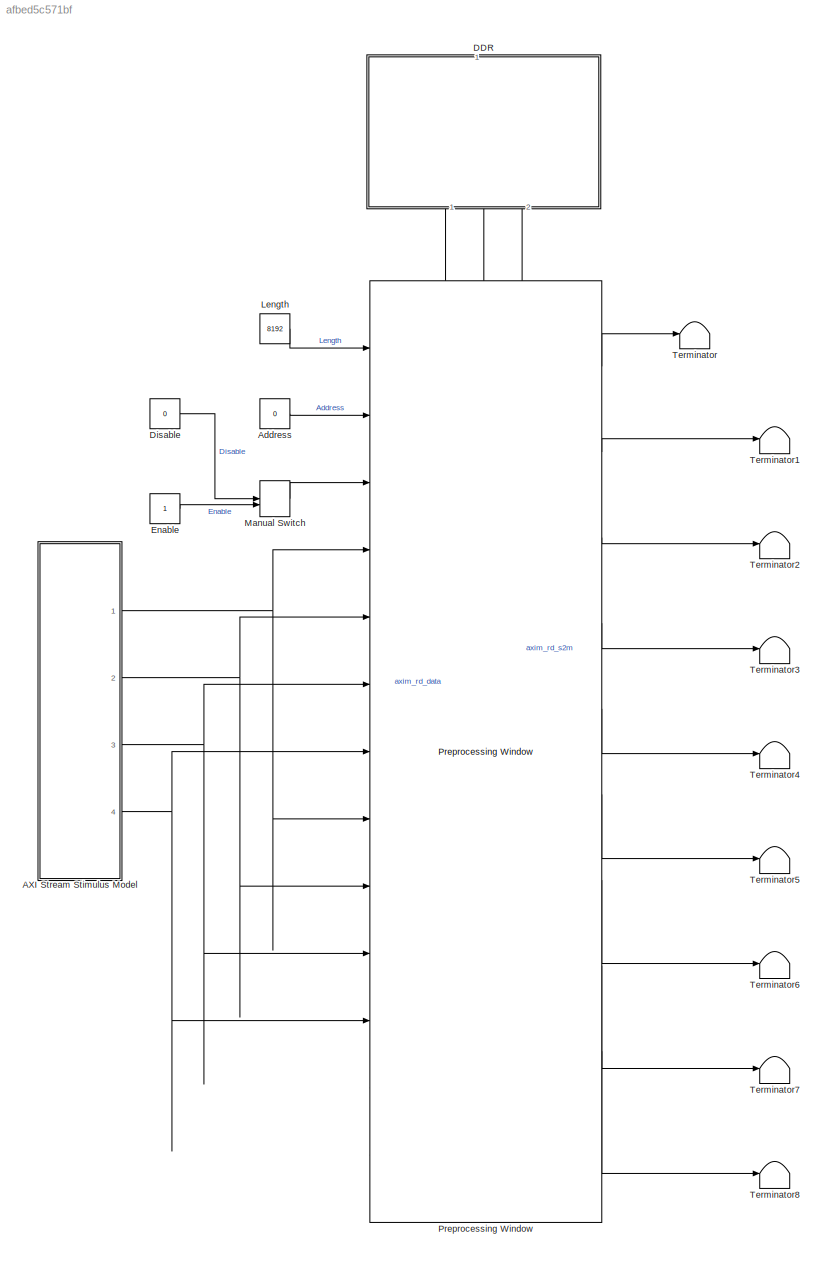
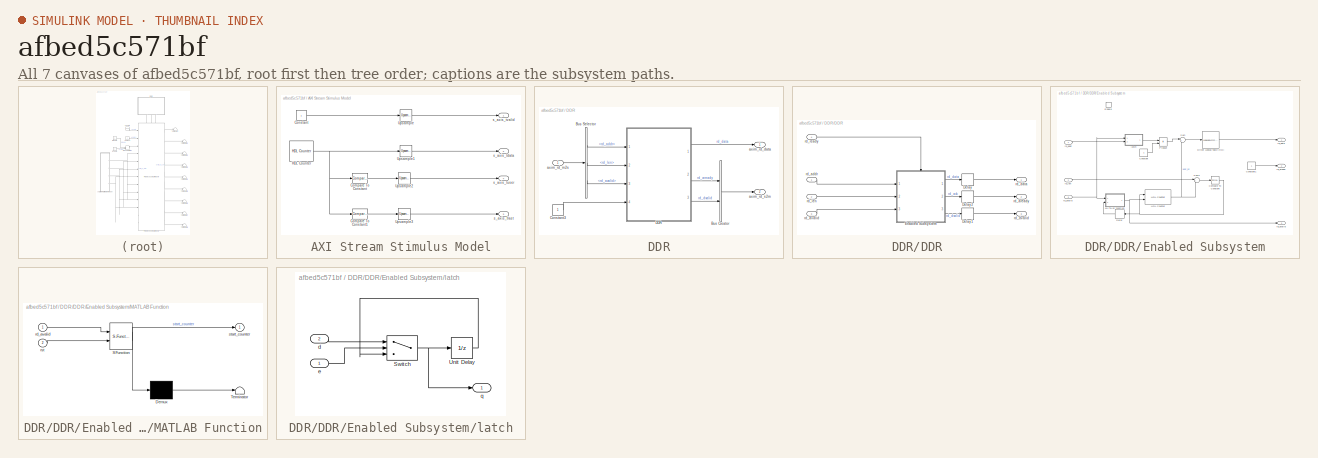
[diagram: thumbnail index - all 7 canvases of the model, root first then tree order]
MODEL slx_afbed5c571bf
KIND model
CONFIG AbsTol = auto
CONFIG EnableMultiTasking = off
CONFIG FixedStep = auto
CONFIG InitFcn = fs = 256e6;
CONFIG MaxStep = auto
CONFIG MinStep = auto
CONFIG RelTol = 1e-3
CONFIG SampleTimeConstraint = Unconstrained
CONFIG Solver = VariableStepAuto
CONFIG SolverName = VariableStepAuto
CONFIG StartTime = 0.0
CONFIG StopTime = inf
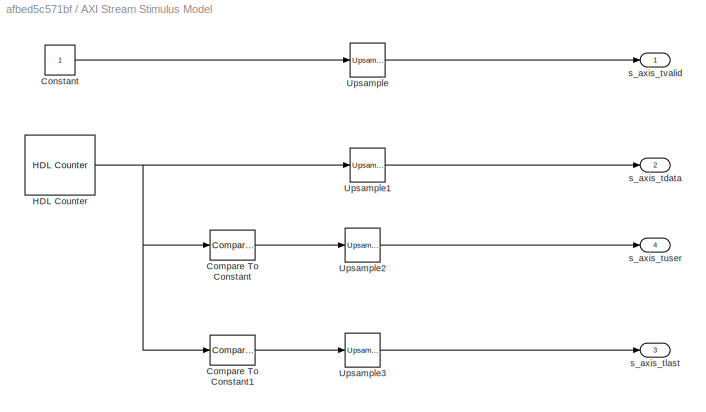
BLOCK [SubSystem] AXI Stream Stimulus Model
  Ports = [0, 4]
  RequestExecContextInheritance = off
BLOCK [Reference] AXI Stream Stimulus Model/Compare To Constant  REF=simulink/Logic and Bit
Operations/Compare
To Constant
  Ports = [1, 1]
  SourceBlock = simulink/Logic and Bit\nOperations/Compare\nTo Constant
  SourceProductBaseCode = SL
  SourceType = Compare To Constant
BLOCK [Reference] AXI Stream Stimulus Model/Compare To Constant1  REF=simulink/Logic and Bit
Operations/Compare
To Constant
  Ports = [1, 1]
  SourceBlock = simulink/Logic and Bit\nOperations/Compare\nTo Constant
  SourceProductBaseCode = SL
  SourceType = Compare To Constant
BLOCK [Constant] AXI Stream Stimulus Model/Constant
  OutDataTypeStr = boolean
  SampleTime = -1
BLOCK [Reference] AXI Stream Stimulus Model/HDL Counter  REF=hdlsllib/Sources/HDL Counter
  Ports = [0, 1]
  SourceBlock = hdlsllib/Sources/HDL Counter
  SourceProductBaseCode = SL
  SourceType = HDL Counter
BLOCK [Reference] AXI Stream Stimulus Model/Upsample  REF=dspsigops/Upsample
  Ports = [1, 1]
  SourceBlock = dspsigops/Upsample
  SourceProductBaseCode = DS
  SourceType = Upsample
  UserDataPersistent = on
BLOCK [Reference] AXI Stream Stimulus Model/Upsample1  REF=dspsigops/Upsample
  Ports = [1, 1]
  SourceBlock = dspsigops/Upsample
  SourceProductBaseCode = DS
  SourceType = Upsample
  UserDataPersistent = on
BLOCK [Reference] AXI Stream Stimulus Model/Upsample2  REF=dspsigops/Upsample
  Ports = [1, 1]
  SourceBlock = dspsigops/Upsample
  SourceProductBaseCode = DS
  SourceType = Upsample
  UserDataPersistent = on
BLOCK [Reference] AXI Stream Stimulus Model/Upsample3  REF=dspsigops/Upsample
  Ports = [1, 1]
  SourceBlock = dspsigops/Upsample
  SourceProductBaseCode = DS
  SourceType = Upsample
  UserDataPersistent = on
BLOCK [Outport] AXI Stream Stimulus Model/s_axis_tdata
  Port = 2
BLOCK [Outport] AXI Stream Stimulus Model/s_axis_tlast
  Port = 3
BLOCK [Outport] AXI Stream Stimulus Model/s_axis_tuser
  Port = 4
BLOCK [Outport] AXI Stream Stimulus Model/s_axis_tvalid
BLOCK [Constant] Address
  OutDataTypeStr = uint32
  SampleTime = 1/fs
  Value = 0
BLOCK [SubSystem] DDR
  NameLocation = top
  PortSchema = {"entries":[{"content":{"sides":[{"content":{"connectorIds":[]},"type":"ConnectorPlacement.EquallySpacedRectSide","uuid":"2b557e1e-8026-43d3-80e6-d6d80e534d60"},{"content":{"connectorIds":["Out1","In1","Out2"],"side":"RIGHT"},"type":"ConnectorPlacement.EquallySpacedRectSide","uuid":"d37ff7b5-bcab-46eb-bf2f-7b890d421095"},{"content":{"connectorIds":[],"side":"TOP"},"type":"ConnectorPlacement.Equall...<+250ch>
  Ports = [1, 2]
  RequestExecContextInheritance = off
  ShowPortLabels = FromPortBlockName
BLOCK [BusCreator] DDR/Bus Creator
  DisplayOption = bar
  InheritFromInputs = on
  Inputs = 2
  Ports = [2, 1]
BLOCK [BusSelector] DDR/Bus Selector
  OutputSignals = rd_addr,rd_len,rd_avalid
  Ports = [1, 3]
BLOCK [Constant] DDR/Constant3
  OutDataTypeStr = boolean
  SampleTime = -1
BLOCK [SubSystem] DDR/DDR
  Ports = [4, 3]
  RequestExecContextInheritance = off
BLOCK [Delay] DDR/DDR/Delay
  DelayLength = 3
  InputPortMap = u0
  Ports = [1, 1]
BLOCK [Delay] DDR/DDR/Delay1
  DelayLength = 3
  InputPortMap = u0
  Ports = [1, 1]
BLOCK [Delay] DDR/DDR/Delay2
  DelayLength = 1
  InputPortMap = u0
  Ports = [1, 1]
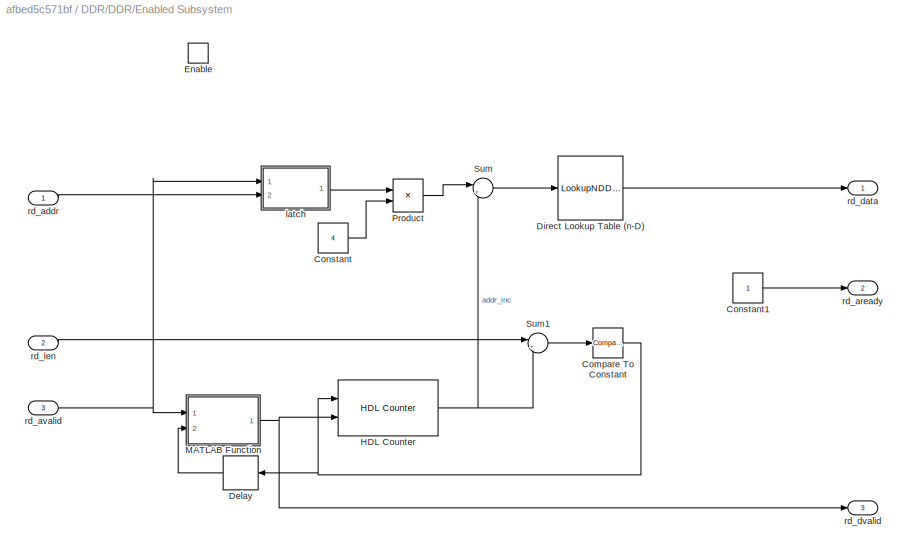
BLOCK [SubSystem] DDR/DDR/Enabled Subsystem
  Ports = [3, 3, 1]
  RequestExecContextInheritance = off
  TreatAsAtomicUnit = on
BLOCK [Reference] DDR/DDR/Enabled Subsystem/Compare To Constant  REF=simulink/Logic and Bit
Operations/Compare
To Constant
  Ports = [1, 1]
  SourceBlock = simulink/Logic and Bit\nOperations/Compare\nTo Constant
  SourceProductBaseCode = SL
  SourceType = Compare To Constant
BLOCK [Constant] DDR/DDR/Enabled Subsystem/Constant
  SampleTime = -1
  Value = 4
BLOCK [Constant] DDR/DDR/Enabled Subsystem/Constant1
  OutDataTypeStr = boolean
  SampleTime = -1
BLOCK [Delay] DDR/DDR/Enabled Subsystem/Delay
  DelayLength = 1
  InputPortMap = u0
  NameLocation = top
  Ports = [1, 1]
BLOCK [LookupNDDirect] DDR/DDR/Enabled Subsystem/Direct Lookup Table (n-D)
  DiagnosticForOutOfRangeInput = Error
  NumberOfTableDimensions = 1
  Ports = [1, 1]
  Table = DDR_DATA
BLOCK [EnablePort] DDR/DDR/Enabled Subsystem/Enable
  Ports = []
BLOCK [Reference] DDR/DDR/Enabled Subsystem/HDL Counter  REF=hdlsllib/Sources/HDL Counter
  Ports = [2, 1]
  SourceBlock = hdlsllib/Sources/HDL Counter
  SourceProductBaseCode = SL
  SourceType = HDL Counter
BLOCK [SubSystem] DDR/DDR/Enabled Subsystem/MATLAB Function
  ErrorFcn = Stateflow.Translate.translate
  PermitHierarchicalResolution = ExplicitOnly
  Ports = [2, 1]
  RequestExecContextInheritance = off
  SFBlockType = MATLAB Function
  TreatAsAtomicUnit = on
BLOCK [Demux] DDR/DDR/Enabled Subsystem/MATLAB Function/ Demux 
  Outputs = 1
  Ports = [1, 1]
BLOCK [S-Function] DDR/DDR/Enabled Subsystem/MATLAB Function/ SFunction 
  EnableBusSupport = on
  FunctionName = sf_sfun
  PortCounts = [2 2]
  Ports = [2, 2]
  SFcnIsStateOwnerBlock = off
  SFunctionDeploymentMode = off
  Tag = Stateflow S-Function 2
BLOCK [Terminator] DDR/DDR/Enabled Subsystem/MATLAB Function/ Terminator 
BLOCK [Inport] DDR/DDR/Enabled Subsystem/MATLAB Function/rd_avalid
BLOCK [Inport] DDR/DDR/Enabled Subsystem/MATLAB Function/rst
  Port = 2
BLOCK [Outport] DDR/DDR/Enabled Subsystem/MATLAB Function/start_counter
  VectorParamsAs1DForOutWhenUnconnected = off
BLOCK [Product] DDR/DDR/Enabled Subsystem/Product
  Inputs = */
  Ports = [2, 1]
BLOCK [Sum] DDR/DDR/Enabled Subsystem/Sum
  Inputs = |++
  OutDataTypeStr = uint32
  Ports = [2, 1]
BLOCK [Sum] DDR/DDR/Enabled Subsystem/Sum1
  Inputs = |+-
  Ports = [2, 1]
BLOCK [SubSystem] DDR/DDR/Enabled Subsystem/latch
  Ports = [2, 1]
  RequestExecContextInheritance = off
BLOCK [Switch] DDR/DDR/Enabled Subsystem/latch/Switch
  Criteria = u2 > Threshold
  InputSameDT = off
  SaturateOnIntegerOverflow = off
BLOCK [UnitDelay] DDR/DDR/Enabled Subsystem/latch/Unit Delay
  HasFrameUpgradeWarning = on
  SampleTime = -1
BLOCK [Inport] DDR/DDR/Enabled Subsystem/latch/d
  Port = 2
BLOCK [Inport] DDR/DDR/Enabled Subsystem/latch/e
  OutDataTypeStr = boolean
BLOCK [Outport] DDR/DDR/Enabled Subsystem/latch/q
  VectorParamsAs1DForOutWhenUnconnected = off
BLOCK [Inport] DDR/DDR/Enabled Subsystem/rd_addr
BLOCK [Outport] DDR/DDR/Enabled Subsystem/rd_aready
  Port = 2
  VectorParamsAs1DForOutWhenUnconnected = off
BLOCK [Inport] DDR/DDR/Enabled Subsystem/rd_avalid
  Port = 3
BLOCK [Outport] DDR/DDR/Enabled Subsystem/rd_data
  VectorParamsAs1DForOutWhenUnconnected = off
BLOCK [Outport] DDR/DDR/Enabled Subsystem/rd_dvalid
  Port = 3
  VectorParamsAs1DForOutWhenUnconnected = off
BLOCK [Inport] DDR/DDR/Enabled Subsystem/rd_len
  Port = 2
BLOCK [Inport] DDR/DDR/rd_addr
BLOCK [Outport] DDR/DDR/rd_aready
  Port = 2
  VectorParamsAs1DForOutWhenUnconnected = off
BLOCK [Inport] DDR/DDR/rd_avalid
  Port = 3
BLOCK [Outport] DDR/DDR/rd_data
  VectorParamsAs1DForOutWhenUnconnected = off
BLOCK [Outport] DDR/DDR/rd_dvalid
  Port = 3
  VectorParamsAs1DForOutWhenUnconnected = off
BLOCK [Inport] DDR/DDR/rd_len
  Port = 2
BLOCK [Inport] DDR/DDR/rd_ready
  Port = 4
BLOCK [Outport] DDR/axim_rd_data
  VectorParamsAs1DForOutWhenUnconnected = off
BLOCK [Inport] DDR/axim_rd_m2s
BLOCK [Outport] DDR/axim_rd_s2m
  Port = 2
  VectorParamsAs1DForOutWhenUnconnected = off
BLOCK [Constant] Disable
  OutDataTypeStr = uint32
  SampleTime = 1/fs
  Value = 0
BLOCK [Constant] Enable
  OutDataTypeStr = uint32
  SampleTime = 1/fs
BLOCK [Constant] Length
  OutDataTypeStr = uint32
  SampleTime = 1/fs
  Value = 8192
BLOCK [ManualSwitch] Manual Switch
  CurrentSetting = 0
BLOCK [Reference] Preprocessing Window  REF=slib_spectrum_analyser/Preprocessing Window  (lib defined in slx_9446f48c21c4, slx_d429541b2c0d)
  Ports = [13, 10]
  SourceBlock = slib_spectrum_analyser/Preprocessing Window
  SourceType = SubSystem
BLOCK [Terminator] Terminator
BLOCK [Terminator] Terminator1
BLOCK [Terminator] Terminator2
BLOCK [Terminator] Terminator3
BLOCK [Terminator] Terminator4
BLOCK [Terminator] Terminator5
BLOCK [Terminator] Terminator6
BLOCK [Terminator] Terminator7
BLOCK [Terminator] Terminator8
LINE AXI Stream Stimulus Model/Compare To Constant1:1 -> AXI Stream Stimulus Model/Upsample3:1
LINE AXI Stream Stimulus Model/Compare To Constant:1 -> AXI Stream Stimulus Model/Upsample2:1
LINE AXI Stream Stimulus Model/Constant:1 -> AXI Stream Stimulus Model/Upsample:1
NET AXI Stream Stimulus Model/HDL Counter:1 -> AXI Stream Stimulus Model/Compare To Constant1:1, AXI Stream Stimulus Model/Compare To Constant:1, AXI Stream Stimulus Model/Upsample1:1
LINE AXI Stream Stimulus Model/Upsample1:1 -> AXI Stream Stimulus Model/s_axis_tdata:1
LINE AXI Stream Stimulus Model/Upsample2:1 -> AXI Stream Stimulus Model/s_axis_tuser:1
LINE AXI Stream Stimulus Model/Upsample3:1 -> AXI Stream Stimulus Model/s_axis_tlast:1
LINE AXI Stream Stimulus Model/Upsample:1 -> AXI Stream Stimulus Model/s_axis_tvalid:1
NET AXI Stream Stimulus Model:1 -> Preprocessing Window:4, Preprocessing Window:8
NET AXI Stream Stimulus Model:2 -> Preprocessing Window:5, Preprocessing Window:9
NET AXI Stream Stimulus Model:3 -> Preprocessing Window:10, Preprocessing Window:6
NET AXI Stream Stimulus Model:4 -> Preprocessing Window:11, Preprocessing Window:7
LINE Address:1 -> Preprocessing Window:2
LINE DDR/Bus Creator:1 -> DDR/axim_rd_s2m:1
LINE DDR/Bus Selector:1 -> DDR/DDR:1
LINE DDR/Bus Selector:2 -> DDR/DDR:2
LINE DDR/Bus Selector:3 -> DDR/DDR:3
LINE DDR/Constant3:1 -> DDR/DDR:4
LINE DDR/DDR/Delay1:1 -> DDR/DDR/rd_dvalid:1
LINE DDR/DDR/Delay2:1 -> DDR/DDR/rd_aready:1
LINE DDR/DDR/Delay:1 -> DDR/DDR/rd_data:1
NET DDR/DDR/Enabled Subsystem/Compare To Constant:1 -> DDR/DDR/Enabled Subsystem/Delay:1, DDR/DDR/Enabled Subsystem/HDL Counter:1
LINE DDR/DDR/Enabled Subsystem/Constant1:1 -> DDR/DDR/Enabled Subsystem/rd_aready:1
LINE DDR/DDR/Enabled Subsystem/Constant:1 -> DDR/DDR/Enabled Subsystem/Product:2
LINE DDR/DDR/Enabled Subsystem/Delay:1 -> DDR/DDR/Enabled Subsystem/MATLAB Function:2
LINE DDR/DDR/Enabled Subsystem/Direct Lookup Table (n-D):1 -> DDR/DDR/Enabled Subsystem/rd_data:1
NET DDR/DDR/Enabled Subsystem/HDL Counter:1 -> DDR/DDR/Enabled Subsystem/Sum1:2, DDR/DDR/Enabled Subsystem/Sum:2
NET DDR/DDR/Enabled Subsystem/MATLAB Function:1 -> DDR/DDR/Enabled Subsystem/HDL Counter:2, DDR/DDR/Enabled Subsystem/rd_dvalid:1
LINE DDR/DDR/Enabled Subsystem/Product:1 -> DDR/DDR/Enabled Subsystem/Sum:1
LINE DDR/DDR/Enabled Subsystem/Sum1:1 -> DDR/DDR/Enabled Subsystem/Compare To Constant:1
LINE DDR/DDR/Enabled Subsystem/Sum:1 -> DDR/DDR/Enabled Subsystem/Direct Lookup Table (n-D):1
NET DDR/DDR/Enabled Subsystem/latch/Switch:1 -> DDR/DDR/Enabled Subsystem/latch/Unit Delay:1, DDR/DDR/Enabled Subsystem/latch/q:1
LINE DDR/DDR/Enabled Subsystem/latch/Unit Delay:1 -> DDR/DDR/Enabled Subsystem/latch/Switch:3
LINE DDR/DDR/Enabled Subsystem/latch/d:1 -> DDR/DDR/Enabled Subsystem/latch/Switch:1
LINE DDR/DDR/Enabled Subsystem/latch/e:1 -> DDR/DDR/Enabled Subsystem/latch/Switch:2
LINE DDR/DDR/Enabled Subsystem/latch:1 -> DDR/DDR/Enabled Subsystem/Product:1
LINE DDR/DDR/Enabled Subsystem/rd_addr:1 -> DDR/DDR/Enabled Subsystem/latch:2
NET DDR/DDR/Enabled Subsystem/rd_avalid:1 -> DDR/DDR/Enabled Subsystem/MATLAB Function:1, DDR/DDR/Enabled Subsystem/latch:1
LINE DDR/DDR/Enabled Subsystem/rd_len:1 -> DDR/DDR/Enabled Subsystem/Sum1:1
LINE DDR/DDR/Enabled Subsystem:1 -> DDR/DDR/Delay:1
LINE DDR/DDR/Enabled Subsystem:2 -> DDR/DDR/Delay2:1
LINE DDR/DDR/Enabled Subsystem:3 -> DDR/DDR/Delay1:1
LINE DDR/DDR/rd_addr:1 -> DDR/DDR/Enabled Subsystem:1
LINE DDR/DDR/rd_avalid:1 -> DDR/DDR/Enabled Subsystem:3
LINE DDR/DDR/rd_len:1 -> DDR/DDR/Enabled Subsystem:2
LINE DDR/DDR/rd_ready:1 -> DDR/DDR/Enabled Subsystem:enable
LINE DDR/DDR:1 -> DDR/axim_rd_data:1
LINE DDR/DDR:2 -> DDR/Bus Creator:1
LINE DDR/DDR:3 -> DDR/Bus Creator:2
LINE DDR/axim_rd_m2s:1 -> DDR/Bus Selector:1
LINE DDR:1 -> Preprocessing Window:13
LINE DDR:2 -> Preprocessing Window:12
LINE Disable:1 -> Manual Switch:1
LINE Enable:1 -> Manual Switch:2
LINE Length:1 -> Preprocessing Window:1
LINE Manual Switch:1 -> Preprocessing Window:3
LINE Preprocessing Window:1 -> Terminator:1
LINE Preprocessing Window:10 -> DDR:1
LINE Preprocessing Window:2 -> Terminator1:1
LINE Preprocessing Window:3 -> Terminator2:1
LINE Preprocessing Window:4 -> Terminator3:1
LINE Preprocessing Window:5 -> Terminator4:1
LINE Preprocessing Window:6 -> Terminator5:1
LINE Preprocessing Window:7 -> Terminator6:1
LINE Preprocessing Window:8 -> Terminator7:1
LINE Preprocessing Window:9 -> Terminator8:1
note: NET lines group one-source signal fan-out (src -> all destinations, sorted); 1:1 wires keep LINE
CHART DDR/DDR/Enabled
Subsystem/MATLAB Function states=1 transitions=1
  STATE_LABEL 'eML_blk_kernel()'
  STATE_LABEL 'SCRIPT:\nfunction start_counter  = fcn(rd_avalid, rst)\n\npersistent start;\nif(isempty(start))\n    start = false;\nend\n\nif (rd_avalid == true)\n    start = true;\nelse\n    \n    if (rst == true)\n        start = false;\n    else\n        start = start;\n    end\nend\nstart_counter = start;'
CHART  states=0 transitions=0
